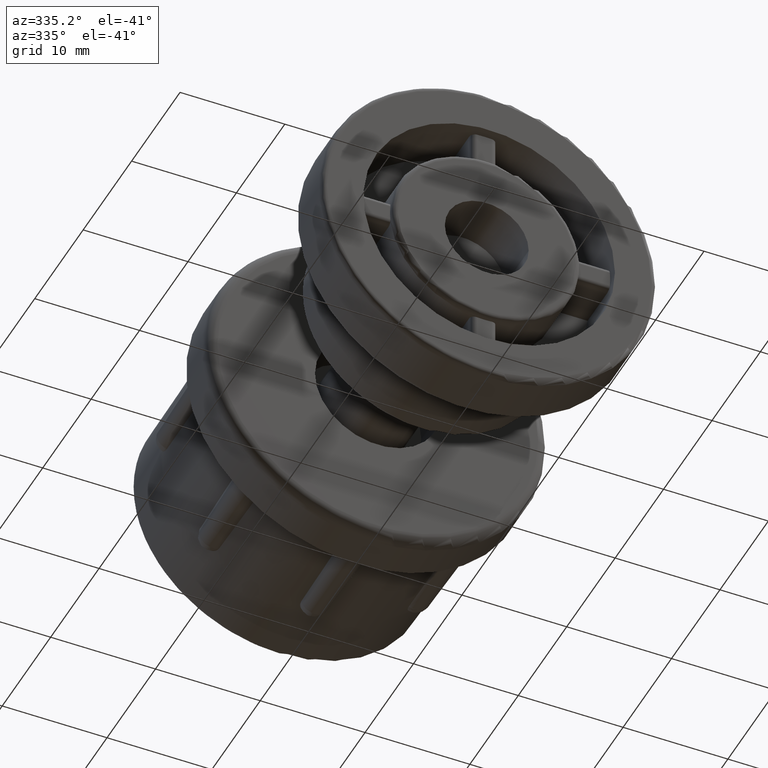
[diagram: clean part render]
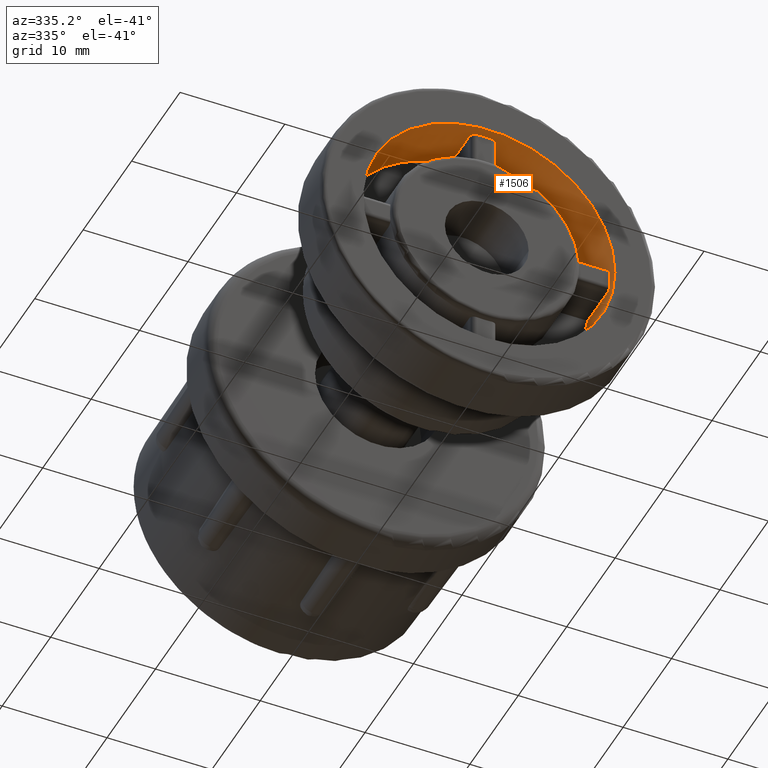
[diagram: same view with one face highlighted and labeled with its STEP entity id]
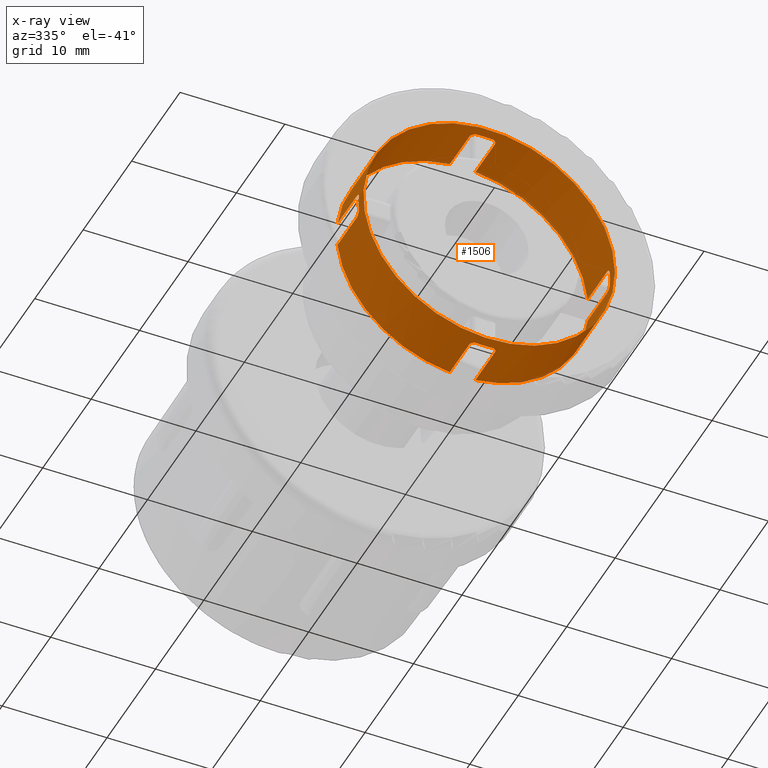
[diagram: x-ray of the same camera — body ghosted, the highlighted face saturated]
A machine part, auxiliary view. The second image highlights one B-rep face of the part: STEP entity #1506.
The next image is the same camera in x-ray: the body ghosted, the highlighted face saturated — about 2% of this face is hidden behind the body in this view.
In plain terms, the highlighted cylindrical surface (bore or boss wall) has radius 12 mm, axis along (0, 1, 0).
Its self-contained STEP definition (entity closure, byte-faithful):
#57=FACE_BOUND('',#363,.T.);
#92=CIRCLE('',#1601,12.);
#99=CIRCLE('',#1615,12.);
#100=CIRCLE('',#1617,12.);
#101=CIRCLE('',#1619,12.);
#102=CIRCLE('',#1621,12.);
#103=CIRCLE('',#1623,12.);
#105=CIRCLE('',#1626,12.);
#106=CIRCLE('',#1628,12.);
#107=CIRCLE('',#1631,12.);
#257=FACE_OUTER_BOUND('',#362,.T.);
#362=EDGE_LOOP('',(#1159,#1160,#1161,#1162,#1163,#1164,#1165,#1166,#1167,
#1168,#1169,#1170,#1171,#1172,#1173,#1174,#1175,#1176,#1177,#1178,#1179,
#1180,#1181,#1182));
#363=EDGE_LOOP('',(#1183));
#437=LINE('',#2202,#509);
#440=LINE('',#2232,#512);
#447=LINE('',#2268,#519);
#450=LINE('',#2298,#522);
#457=LINE('',#2334,#529);
#460=LINE('',#2364,#532);
#467=LINE('',#2400,#539);
#470=LINE('',#2430,#542);
#509=VECTOR('',#1749,4.);
#512=VECTOR('',#1756,4.);
#519=VECTOR('',#1767,4.);
#522=VECTOR('',#1774,4.);
#529=VECTOR('',#1785,4.);
#532=VECTOR('',#1792,4.);
#539=VECTOR('',#1803,4.);
#542=VECTOR('',#1810,4.);
#578=B_SPLINE_CURVE_WITH_KNOTS('',3,(#2186,#2187,#2188,#2189,#2190,#2191,
#2192,#2193,#2194,#2195),.UNSPECIFIED.,.F.,.F.,(4,2,2,2,4),(-0.0754565969526208,
-0.0565650622235629,-0.037673527494505,-0.0188367637472525,0.),
 .UNSPECIFIED.);
#580=B_SPLINE_CURVE_WITH_KNOTS('',3,(#2219,#2220,#2221,#2222,#2223,#2224,
#2225,#2226,#2227,#2228),.UNSPECIFIED.,.F.,.F.,(4,2,2,2,4),(0.,0.0188367637472525,
0.0376735274945049,0.0565650622235629,0.0754565969526208),.UNSPECIFIED.);
#582=B_SPLINE_CURVE_WITH_KNOTS('',3,(#2252,#2253,#2254,#2255,#2256,#2257,
#2258,#2259,#2260,#2261),.UNSPECIFIED.,.F.,.F.,(4,2,2,2,4),(-0.0754565969526208,
-0.0565650622235629,-0.037673527494505,-0.0188367637472525,0.),
 .UNSPECIFIED.);
#584=B_SPLINE_CURVE_WITH_KNOTS('',3,(#2285,#2286,#2287,#2288,#2289,#2290,
#2291,#2292,#2293,#2294),.UNSPECIFIED.,.F.,.F.,(4,2,2,2,4),(0.,0.0188367637472525,
0.0376735274945049,0.0565650622235628,0.0754565969526208),.UNSPECIFIED.);
#586=B_SPLINE_CURVE_WITH_KNOTS('',3,(#2318,#2319,#2320,#2321,#2322,#2323,
#2324,#2325,#2326,#2327),.UNSPECIFIED.,.F.,.F.,(4,2,2,2,4),(-0.0754565969526208,
-0.0565650622235629,-0.037673527494505,-0.0188367637472525,0.),
 .UNSPECIFIED.);
#588=B_SPLINE_CURVE_WITH_KNOTS('',3,(#2351,#2352,#2353,#2354,#2355,#2356,
#2357,#2358,#2359,#2360),.UNSPECIFIED.,.F.,.F.,(4,2,2,2,4),(0.,0.0188367637472525,
0.0376735274945049,0.0565650622235628,0.0754565969526207),.UNSPECIFIED.);
#590=B_SPLINE_CURVE_WITH_KNOTS('',3,(#2384,#2385,#2386,#2387,#2388,#2389,
#2390,#2391,#2392,#2393),.UNSPECIFIED.,.F.,.F.,(4,2,2,2,4),(-0.0754565969526208,
-0.0565650622235629,-0.0376735274945049,-0.0188367637472525,0.),
 .UNSPECIFIED.);
#592=B_SPLINE_CURVE_WITH_KNOTS('',3,(#2417,#2418,#2419,#2420,#2421,#2422,
#2423,#2424,#2425,#2426),.UNSPECIFIED.,.F.,.F.,(4,2,2,2,4),(0.,0.0188367637472525,
0.0376735274945049,0.0565650622235628,0.0754565969526208),.UNSPECIFIED.);
#635=VERTEX_POINT('',#2183);
#636=VERTEX_POINT('',#2185);
#638=VERTEX_POINT('',#2200);
#641=VERTEX_POINT('',#2216);
#642=VERTEX_POINT('',#2218);
#643=VERTEX_POINT('',#2231);
#647=VERTEX_POINT('',#2249);
#648=VERTEX_POINT('',#2251);
#650=VERTEX_POINT('',#2266);
#653=VERTEX_POINT('',#2282);
#654=VERTEX_POINT('',#2284);
#655=VERTEX_POINT('',#2297);
#659=VERTEX_POINT('',#2315);
#660=VERTEX_POINT('',#2317);
#662=VERTEX_POINT('',#2332);
#665=VERTEX_POINT('',#2348);
#666=VERTEX_POINT('',#2350);
#667=VERTEX_POINT('',#2363);
#671=VERTEX_POINT('',#2381);
#672=VERTEX_POINT('',#2383);
#674=VERTEX_POINT('',#2398);
#677=VERTEX_POINT('',#2414);
#678=VERTEX_POINT('',#2416);
#679=VERTEX_POINT('',#2429);
#686=VERTEX_POINT('',#2463);
#792=EDGE_CURVE('',#635,#636,#578,.F.);
#796=EDGE_CURVE('',#635,#638,#437,.T.);
#799=EDGE_CURVE('',#641,#642,#580,.F.);
#801=EDGE_CURVE('',#643,#642,#440,.T.);
#806=EDGE_CURVE('',#647,#648,#582,.F.);
#810=EDGE_CURVE('',#647,#650,#447,.T.);
#813=EDGE_CURVE('',#653,#654,#584,.F.);
#815=EDGE_CURVE('',#655,#654,#450,.T.);
#820=EDGE_CURVE('',#659,#660,#586,.F.);
#824=EDGE_CURVE('',#659,#662,#457,.T.);
#827=EDGE_CURVE('',#665,#666,#588,.F.);
#829=EDGE_CURVE('',#667,#666,#460,.T.);
#834=EDGE_CURVE('',#671,#672,#590,.F.);
#838=EDGE_CURVE('',#671,#674,#467,.T.);
#841=EDGE_CURVE('',#677,#678,#592,.F.);
#843=EDGE_CURVE('',#679,#678,#470,.T.);
#862=EDGE_CURVE('',#686,#686,#92,.T.);
#869=EDGE_CURVE('',#677,#672,#99,.T.);
#870=EDGE_CURVE('',#641,#636,#100,.T.);
#871=EDGE_CURVE('',#653,#648,#101,.T.);
#872=EDGE_CURVE('',#662,#655,#102,.T.);
#873=EDGE_CURVE('',#650,#643,#103,.T.);
#875=EDGE_CURVE('',#638,#679,#105,.T.);
#876=EDGE_CURVE('',#674,#667,#106,.T.);
#877=EDGE_CURVE('',#665,#660,#107,.T.);
#1159=ORIENTED_EDGE('',*,*,#838,.T.);
#1160=ORIENTED_EDGE('',*,*,#876,.T.);
#1161=ORIENTED_EDGE('',*,*,#829,.T.);
#1162=ORIENTED_EDGE('',*,*,#827,.F.);
#1163=ORIENTED_EDGE('',*,*,#877,.T.);
#1164=ORIENTED_EDGE('',*,*,#820,.F.);
#1165=ORIENTED_EDGE('',*,*,#824,.T.);
#1166=ORIENTED_EDGE('',*,*,#872,.T.);
#1167=ORIENTED_EDGE('',*,*,#815,.T.);
#1168=ORIENTED_EDGE('',*,*,#813,.F.);
#1169=ORIENTED_EDGE('',*,*,#871,.T.);
#1170=ORIENTED_EDGE('',*,*,#806,.F.);
#1171=ORIENTED_EDGE('',*,*,#810,.T.);
#1172=ORIENTED_EDGE('',*,*,#873,.T.);
#1173=ORIENTED_EDGE('',*,*,#801,.T.);
#1174=ORIENTED_EDGE('',*,*,#799,.F.);
#1175=ORIENTED_EDGE('',*,*,#870,.T.);
#1176=ORIENTED_EDGE('',*,*,#792,.F.);
#1177=ORIENTED_EDGE('',*,*,#796,.T.);
#1178=ORIENTED_EDGE('',*,*,#875,.T.);
#1179=ORIENTED_EDGE('',*,*,#843,.T.);
#1180=ORIENTED_EDGE('',*,*,#841,.F.);
#1181=ORIENTED_EDGE('',*,*,#869,.T.);
#1182=ORIENTED_EDGE('',*,*,#834,.F.);
#1183=ORIENTED_EDGE('',*,*,#862,.F.);
#1456=CYLINDRICAL_SURFACE('',#1635,12.);
#1506=ADVANCED_FACE('',(#257,#57),#1456,.F.);
#1601=AXIS2_PLACEMENT_3D('',#2464,#1861,#1862);
#1615=AXIS2_PLACEMENT_3D('',#2484,#1889,#1890);
#1617=AXIS2_PLACEMENT_3D('',#2486,#1893,#1894);
#1619=AXIS2_PLACEMENT_3D('',#2488,#1897,#1898);
#1621=AXIS2_PLACEMENT_3D('',#2490,#1901,#1902);
#1623=AXIS2_PLACEMENT_3D('',#2492,#1905,#1906);
#1626=AXIS2_PLACEMENT_3D('',#2495,#1911,#1912);
#1628=AXIS2_PLACEMENT_3D('',#2497,#1915,#1916);
#1631=AXIS2_PLACEMENT_3D('',#2500,#1921,#1922);
#1635=AXIS2_PLACEMENT_3D('',#2505,#1929,#1930);
#1749=DIRECTION('',(0.,1.,0.));
#1756=DIRECTION('',(0.,-1.,0.));
#1767=DIRECTION('',(0.,1.,0.));
#1774=DIRECTION('',(0.,-1.,0.));
#1785=DIRECTION('',(0.,1.,0.));
#1792=DIRECTION('',(0.,-1.,0.));
#1803=DIRECTION('',(0.,1.,0.));
#1810=DIRECTION('',(0.,-1.,0.));
#1861=DIRECTION('center_axis',(-6.34413156928661E-17,1.,0.));
#1862=DIRECTION('ref_axis',(-1.,0.,0.));
#1889=DIRECTION('center_axis',(0.,1.,0.));
#1890=DIRECTION('ref_axis',(-1.,0.,0.));
#1893=DIRECTION('center_axis',(0.,1.,0.));
#1894=DIRECTION('ref_axis',(-1.,0.,0.));
#1897=DIRECTION('center_axis',(0.,1.,0.));
#1898=DIRECTION('ref_axis',(-1.,0.,0.));
#1901=DIRECTION('center_axis',(-6.34413156928661E-17,1.,0.));
#1902=DIRECTION('ref_axis',(-1.,-6.34413156928661E-17,0.));
#1905=DIRECTION('center_axis',(-6.34413156928661E-17,1.,0.));
#1906=DIRECTION('ref_axis',(-1.,-6.34413156928661E-17,0.));
#1911=DIRECTION('center_axis',(-6.34413156928661E-17,1.,0.));
#1912=DIRECTION('ref_axis',(-1.,-6.34413156928661E-17,0.));
#1915=DIRECTION('center_axis',(-6.34413156928661E-17,1.,0.));
#1916=DIRECTION('ref_axis',(-1.,-6.34413156928661E-17,0.));
#1921=DIRECTION('center_axis',(0.,1.,0.));
#1922=DIRECTION('ref_axis',(-1.,0.,0.));
#1929=DIRECTION('center_axis',(0.,1.,0.));
#1930=DIRECTION('ref_axis',(-1.,0.,0.));
#2183=CARTESIAN_POINT('',(-11.9373102079154,1.5,1.225));
#2185=CARTESIAN_POINT('',(-11.9780789361233,1.,0.724999999999999));
#2186=CARTESIAN_POINT('Ctrl Pts',(-11.9780789361233,1.,0.724999999999999));
#2187=CARTESIAN_POINT('Ctrl Pts',(-11.9742743909348,1.,0.787856748391434));
#2188=CARTESIAN_POINT('Ctrl Pts',(-11.9696707944417,1.01257367721032,0.854868964120006));
#2189=CARTESIAN_POINT('Ctrl Pts',(-11.9602301282645,1.06367264565834,0.978118168805255));
#2190=CARTESIAN_POINT('Ctrl Pts',(-11.9554210529607,1.10219702860214,1.03435767705418));
#2191=CARTESIAN_POINT('Ctrl Pts',(-11.9474154491353,1.19099702501983,1.12304983447038));
#2192=CARTESIAN_POINT('Ctrl Pts',(-11.9436860692694,1.2471564277975,1.16147283190642));
#2193=CARTESIAN_POINT('Ctrl Pts',(-11.9386189943723,1.37026226700893,1.21244899645157));
#2194=CARTESIAN_POINT('Ctrl Pts',(-11.9373102079153,1.43721078750916,1.225));
#2195=CARTESIAN_POINT('Ctrl Pts',(-11.9373102079154,1.5,1.225));
#2200=CARTESIAN_POINT('',(-11.9373102079154,5.5,1.225));
#2202=CARTESIAN_POINT('',(-11.9373102079154,0.,1.225));
#2216=CARTESIAN_POINT('',(-11.9780789361233,1.,-0.725000000000001));
#2218=CARTESIAN_POINT('',(-11.9373102079154,1.5,-1.225));
#2219=CARTESIAN_POINT('Ctrl Pts',(-11.9373102079154,1.5,-1.225));
#2220=CARTESIAN_POINT('Ctrl Pts',(-11.9373102079154,1.43721078750916,-1.225));
#2221=CARTESIAN_POINT('Ctrl Pts',(-11.9386189943723,1.37026226700893,-1.21244899645157));
#2222=CARTESIAN_POINT('Ctrl Pts',(-11.9436860692694,1.2471564277975,-1.16147283190642));
#2223=CARTESIAN_POINT('Ctrl Pts',(-11.9474154491353,1.19099702501983,-1.12304983447038));
#2224=CARTESIAN_POINT('Ctrl Pts',(-11.9554210529607,1.10219702860214,-1.03435767705418));
#2225=CARTESIAN_POINT('Ctrl Pts',(-11.9602301282645,1.06367264565834,-0.978118168805258));
#2226=CARTESIAN_POINT('Ctrl Pts',(-11.9696707944416,1.01257367721032,-0.854868964120009));
#2227=CARTESIAN_POINT('Ctrl Pts',(-11.9742743909348,1.,-0.787856748391438));
#2228=CARTESIAN_POINT('Ctrl Pts',(-11.9780789361233,1.,-0.725000000000001));
#2231=CARTESIAN_POINT('',(-11.9373102079154,5.5,-1.225));
#2232=CARTESIAN_POINT('',(-11.9373102079154,0.,-1.225));
#2249=CARTESIAN_POINT('',(-1.225,1.5,-11.9373102079154));
#2251=CARTESIAN_POINT('',(-0.724999999999999,1.,-11.9780789361233));
#2252=CARTESIAN_POINT('Ctrl Pts',(-0.724999999999999,1.,-11.9780789361233));
#2253=CARTESIAN_POINT('Ctrl Pts',(-0.787856748391435,1.,-11.9742743909348));
#2254=CARTESIAN_POINT('Ctrl Pts',(-0.854868964120007,1.01257367721032,-11.9696707944417));
#2255=CARTESIAN_POINT('Ctrl Pts',(-0.978118168805256,1.06367264565834,-11.9602301282645));
#2256=CARTESIAN_POINT('Ctrl Pts',(-1.03435767705418,1.10219702860214,-11.9554210529607));
#2257=CARTESIAN_POINT('Ctrl Pts',(-1.12304983447038,1.19099702501983,-11.9474154491353));
#2258=CARTESIAN_POINT('Ctrl Pts',(-1.16147283190642,1.2471564277975,-11.9436860692694));
#2259=CARTESIAN_POINT('Ctrl Pts',(-1.21244899645157,1.37026226700893,-11.9386189943723));
#2260=CARTESIAN_POINT('Ctrl Pts',(-1.225,1.43721078750916,-11.9373102079153));
#2261=CARTESIAN_POINT('Ctrl Pts',(-1.225,1.5,-11.9373102079154));
#2266=CARTESIAN_POINT('',(-1.225,5.5,-11.9373102079154));
#2268=CARTESIAN_POINT('',(-1.225,0.,-11.9373102079154));
#2282=CARTESIAN_POINT('',(0.725000000000001,1.,-11.9780789361233));
#2284=CARTESIAN_POINT('',(1.225,1.5,-11.9373102079154));
#2285=CARTESIAN_POINT('Ctrl Pts',(1.225,1.5,-11.9373102079154));
#2286=CARTESIAN_POINT('Ctrl Pts',(1.225,1.43721078750916,-11.9373102079154));
#2287=CARTESIAN_POINT('Ctrl Pts',(1.21244899645157,1.37026226700893,-11.9386189943723));
#2288=CARTESIAN_POINT('Ctrl Pts',(1.16147283190642,1.2471564277975,-11.9436860692694));
#2289=CARTESIAN_POINT('Ctrl Pts',(1.12304983447038,1.19099702501983,-11.9474154491353));
#2290=CARTESIAN_POINT('Ctrl Pts',(1.03435767705418,1.10219702860214,-11.9554210529607));
#2291=CARTESIAN_POINT('Ctrl Pts',(0.978118168805258,1.06367264565834,-11.9602301282645));
#2292=CARTESIAN_POINT('Ctrl Pts',(0.854868964120009,1.01257367721032,-11.9696707944417));
#2293=CARTESIAN_POINT('Ctrl Pts',(0.787856748391437,1.,-11.9742743909348));
#2294=CARTESIAN_POINT('Ctrl Pts',(0.725000000000001,1.,-11.9780789361233));
#2297=CARTESIAN_POINT('',(1.225,5.5,-11.9373102079154));
#2298=CARTESIAN_POINT('',(1.225,0.,-11.9373102079154));
#2315=CARTESIAN_POINT('',(11.9373102079154,1.5,-1.225));
#2317=CARTESIAN_POINT('',(11.9780789361233,1.,-0.725));
#2318=CARTESIAN_POINT('Ctrl Pts',(11.9780789361233,1.,-0.725));
#2319=CARTESIAN_POINT('Ctrl Pts',(11.9742743909348,1.,-0.787856748391436));
#2320=CARTESIAN_POINT('Ctrl Pts',(11.9696707944417,1.01257367721032,-0.854868964120008));
#2321=CARTESIAN_POINT('Ctrl Pts',(11.9602301282645,1.06367264565834,-0.978118168805257));
#2322=CARTESIAN_POINT('Ctrl Pts',(11.9554210529607,1.10219702860214,-1.03435767705418));
#2323=CARTESIAN_POINT('Ctrl Pts',(11.9474154491353,1.19099702501983,-1.12304983447038));
#2324=CARTESIAN_POINT('Ctrl Pts',(11.9436860692694,1.2471564277975,-1.16147283190642));
#2325=CARTESIAN_POINT('Ctrl Pts',(11.9386189943723,1.37026226700893,-1.21244899645157));
#2326=CARTESIAN_POINT('Ctrl Pts',(11.9373102079154,1.43721078750916,-1.225));
#2327=CARTESIAN_POINT('Ctrl Pts',(11.9373102079154,1.5,-1.225));
#2332=CARTESIAN_POINT('',(11.9373102079154,5.5,-1.225));
#2334=CARTESIAN_POINT('',(11.9373102079154,0.,-1.225));
#2348=CARTESIAN_POINT('',(11.9780789361233,1.,0.725));
#2350=CARTESIAN_POINT('',(11.9373102079154,1.5,1.225));
#2351=CARTESIAN_POINT('Ctrl Pts',(11.9373102079154,1.5,1.225));
#2352=CARTESIAN_POINT('Ctrl Pts',(11.9373102079154,1.43721078750916,1.225));
#2353=CARTESIAN_POINT('Ctrl Pts',(11.9386189943723,1.37026226700893,1.21244899645157));
#2354=CARTESIAN_POINT('Ctrl Pts',(11.9436860692694,1.2471564277975,1.16147283190642));
#2355=CARTESIAN_POINT('Ctrl Pts',(11.9474154491353,1.19099702501983,1.12304983447038));
#2356=CARTESIAN_POINT('Ctrl Pts',(11.9554210529607,1.10219702860214,1.03435767705418));
#2357=CARTESIAN_POINT('Ctrl Pts',(11.9602301282645,1.06367264565834,0.978118168805257));
#2358=CARTESIAN_POINT('Ctrl Pts',(11.9696707944417,1.01257367721032,0.854868964120008));
#2359=CARTESIAN_POINT('Ctrl Pts',(11.9742743909348,1.,0.787856748391436));
#2360=CARTESIAN_POINT('Ctrl Pts',(11.9780789361233,1.,0.725));
#2363=CARTESIAN_POINT('',(11.9373102079154,5.5,1.225));
#2364=CARTESIAN_POINT('',(11.9373102079154,0.,1.225));
#2381=CARTESIAN_POINT('',(1.225,1.5,11.9373102079154));
#2383=CARTESIAN_POINT('',(0.724999999999998,1.,11.9780789361233));
#2384=CARTESIAN_POINT('Ctrl Pts',(0.724999999999998,1.,11.9780789361233));
#2385=CARTESIAN_POINT('Ctrl Pts',(0.787856748391434,1.,11.9742743909348));
#2386=CARTESIAN_POINT('Ctrl Pts',(0.854868964120006,1.01257367721032,11.9696707944417));
#2387=CARTESIAN_POINT('Ctrl Pts',(0.978118168805255,1.06367264565834,11.9602301282645));
#2388=CARTESIAN_POINT('Ctrl Pts',(1.03435767705418,1.10219702860214,11.9554210529607));
#2389=CARTESIAN_POINT('Ctrl Pts',(1.12304983447038,1.19099702501983,11.9474154491353));
#2390=CARTESIAN_POINT('Ctrl Pts',(1.16147283190642,1.2471564277975,11.9436860692694));
#2391=CARTESIAN_POINT('Ctrl Pts',(1.21244899645157,1.37026226700893,11.9386189943723));
#2392=CARTESIAN_POINT('Ctrl Pts',(1.225,1.43721078750916,11.9373102079154));
#2393=CARTESIAN_POINT('Ctrl Pts',(1.225,1.5,11.9373102079154));
#2398=CARTESIAN_POINT('',(1.225,5.5,11.9373102079154));
#2400=CARTESIAN_POINT('',(1.225,0.,11.9373102079154));
#2414=CARTESIAN_POINT('',(-0.725000000000002,1.,11.9780789361233));
#2416=CARTESIAN_POINT('',(-1.225,1.5,11.9373102079154));
#2417=CARTESIAN_POINT('Ctrl Pts',(-1.225,1.5,11.9373102079154));
#2418=CARTESIAN_POINT('Ctrl Pts',(-1.225,1.43721078750916,11.9373102079154));
#2419=CARTESIAN_POINT('Ctrl Pts',(-1.21244899645158,1.37026226700893,11.9386189943723));
#2420=CARTESIAN_POINT('Ctrl Pts',(-1.16147283190643,1.2471564277975,11.9436860692694));
#2421=CARTESIAN_POINT('Ctrl Pts',(-1.12304983447038,1.19099702501983,11.9474154491353));
#2422=CARTESIAN_POINT('Ctrl Pts',(-1.03435767705418,1.10219702860214,11.9554210529607));
#2423=CARTESIAN_POINT('Ctrl Pts',(-0.97811816880526,1.06367264565834,11.9602301282645));
#2424=CARTESIAN_POINT('Ctrl Pts',(-0.85486896412001,1.01257367721032,11.9696707944416));
#2425=CARTESIAN_POINT('Ctrl Pts',(-0.787856748391439,1.,11.9742743909348));
#2426=CARTESIAN_POINT('Ctrl Pts',(-0.725000000000002,1.,11.9780789361233));
#2429=CARTESIAN_POINT('',(-1.225,5.5,11.9373102079154));
#2430=CARTESIAN_POINT('',(-1.225,0.,11.9373102079154));
#2463=CARTESIAN_POINT('',(12.,7.61295788314393E-16,1.46957615897682E-15));
#2464=CARTESIAN_POINT('Origin',(0.,0.,0.));
#2484=CARTESIAN_POINT('Origin',(0.,1.,0.));
#2486=CARTESIAN_POINT('Origin',(0.,1.,0.));
#2488=CARTESIAN_POINT('Origin',(0.,1.,0.));
#2490=CARTESIAN_POINT('Origin',(0.,5.5,0.));
#2492=CARTESIAN_POINT('Origin',(0.,5.5,0.));
#2495=CARTESIAN_POINT('Origin',(0.,5.5,0.));
#2497=CARTESIAN_POINT('Origin',(0.,5.5,0.));
#2500=CARTESIAN_POINT('Origin',(0.,1.,0.));
#2505=CARTESIAN_POINT('Origin',(0.,0.,0.));